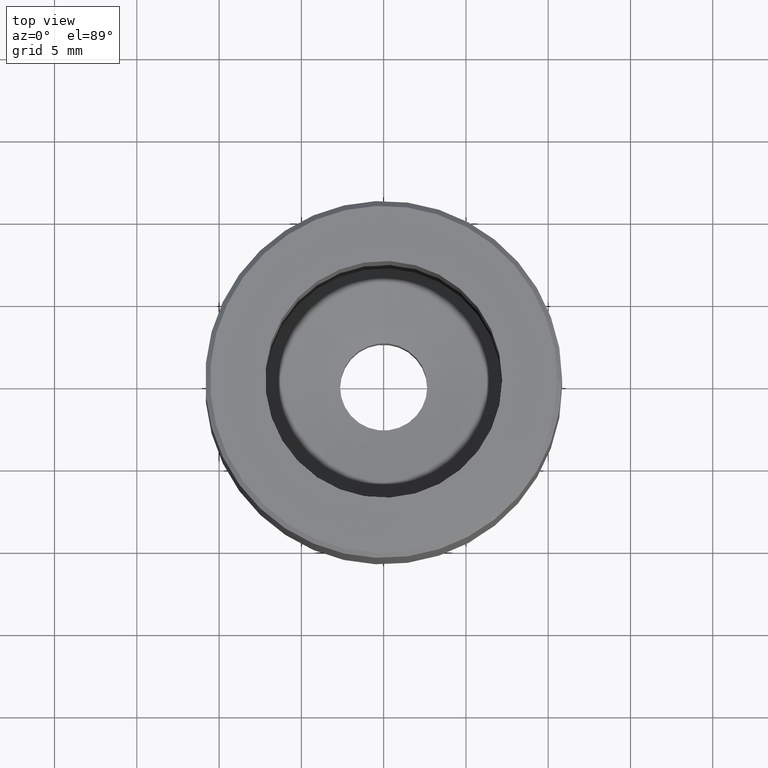
[diagram: clean part render]
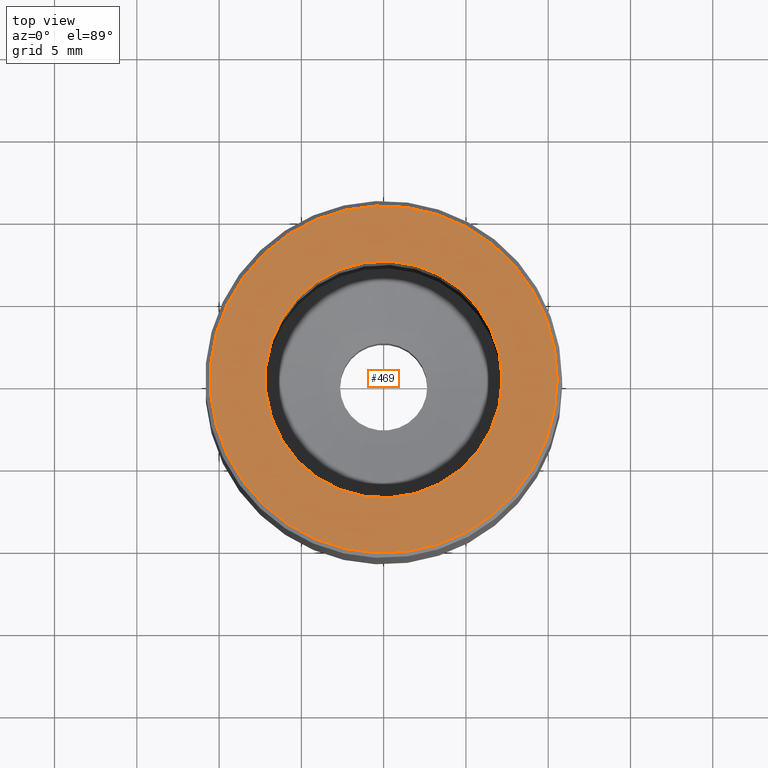
[diagram: same view with one face highlighted and labeled with its STEP entity id]
A machine part, top view. The second image highlights one B-rep face of the part: STEP entity #469.
In plain terms, the highlighted planar face has unit normal (0, 0, 1).
Its self-contained STEP definition (entity closure, byte-faithful):
#469=ADVANCED_FACE('',(#650,#637),#583,.T.);
#583=PLANE('',#2181);
#637=FACE_BOUND('',#762,.T.);
#650=FACE_OUTER_BOUND('',#761,.T.);
#761=EDGE_LOOP('',(#885));
#762=EDGE_LOOP('',(#886));
#885=ORIENTED_EDGE('',*,*,#1744,.T.);
#886=ORIENTED_EDGE('',*,*,#1745,.T.);
#1527=VERTEX_POINT('',#2968);
#1528=VERTEX_POINT('',#2970);
#1744=EDGE_CURVE('',#1527,#1527,#2065,.T.);
#1745=EDGE_CURVE('',#1528,#1528,#2066,.T.);
#2065=CIRCLE('',#2179,10.55);
#2066=CIRCLE('',#2180,7.2);
#2179=AXIS2_PLACEMENT_3D('',#2967,#2408,#2409);
#2180=AXIS2_PLACEMENT_3D('',#2969,#2410,#2411);
#2181=AXIS2_PLACEMENT_3D('',#2971,#2412,#2413);
#2408=DIRECTION('',(0.,0.,1.));
#2409=DIRECTION('',(1.,0.,0.));
#2410=DIRECTION('',(0.,0.,-1.));
#2411=DIRECTION('',(1.,0.,0.));
#2412=DIRECTION('',(0.,0.,1.));
#2413=DIRECTION('',(1.,0.,0.));
#2967=CARTESIAN_POINT('',(0.,0.,0.2));
#2968=CARTESIAN_POINT('',(10.55,0.,0.2));
#2969=CARTESIAN_POINT('',(0.,0.,0.2));
#2970=CARTESIAN_POINT('',(7.2,0.,0.2));
#2971=CARTESIAN_POINT('',(0.825983268781652,-0.624072896689155,0.2));